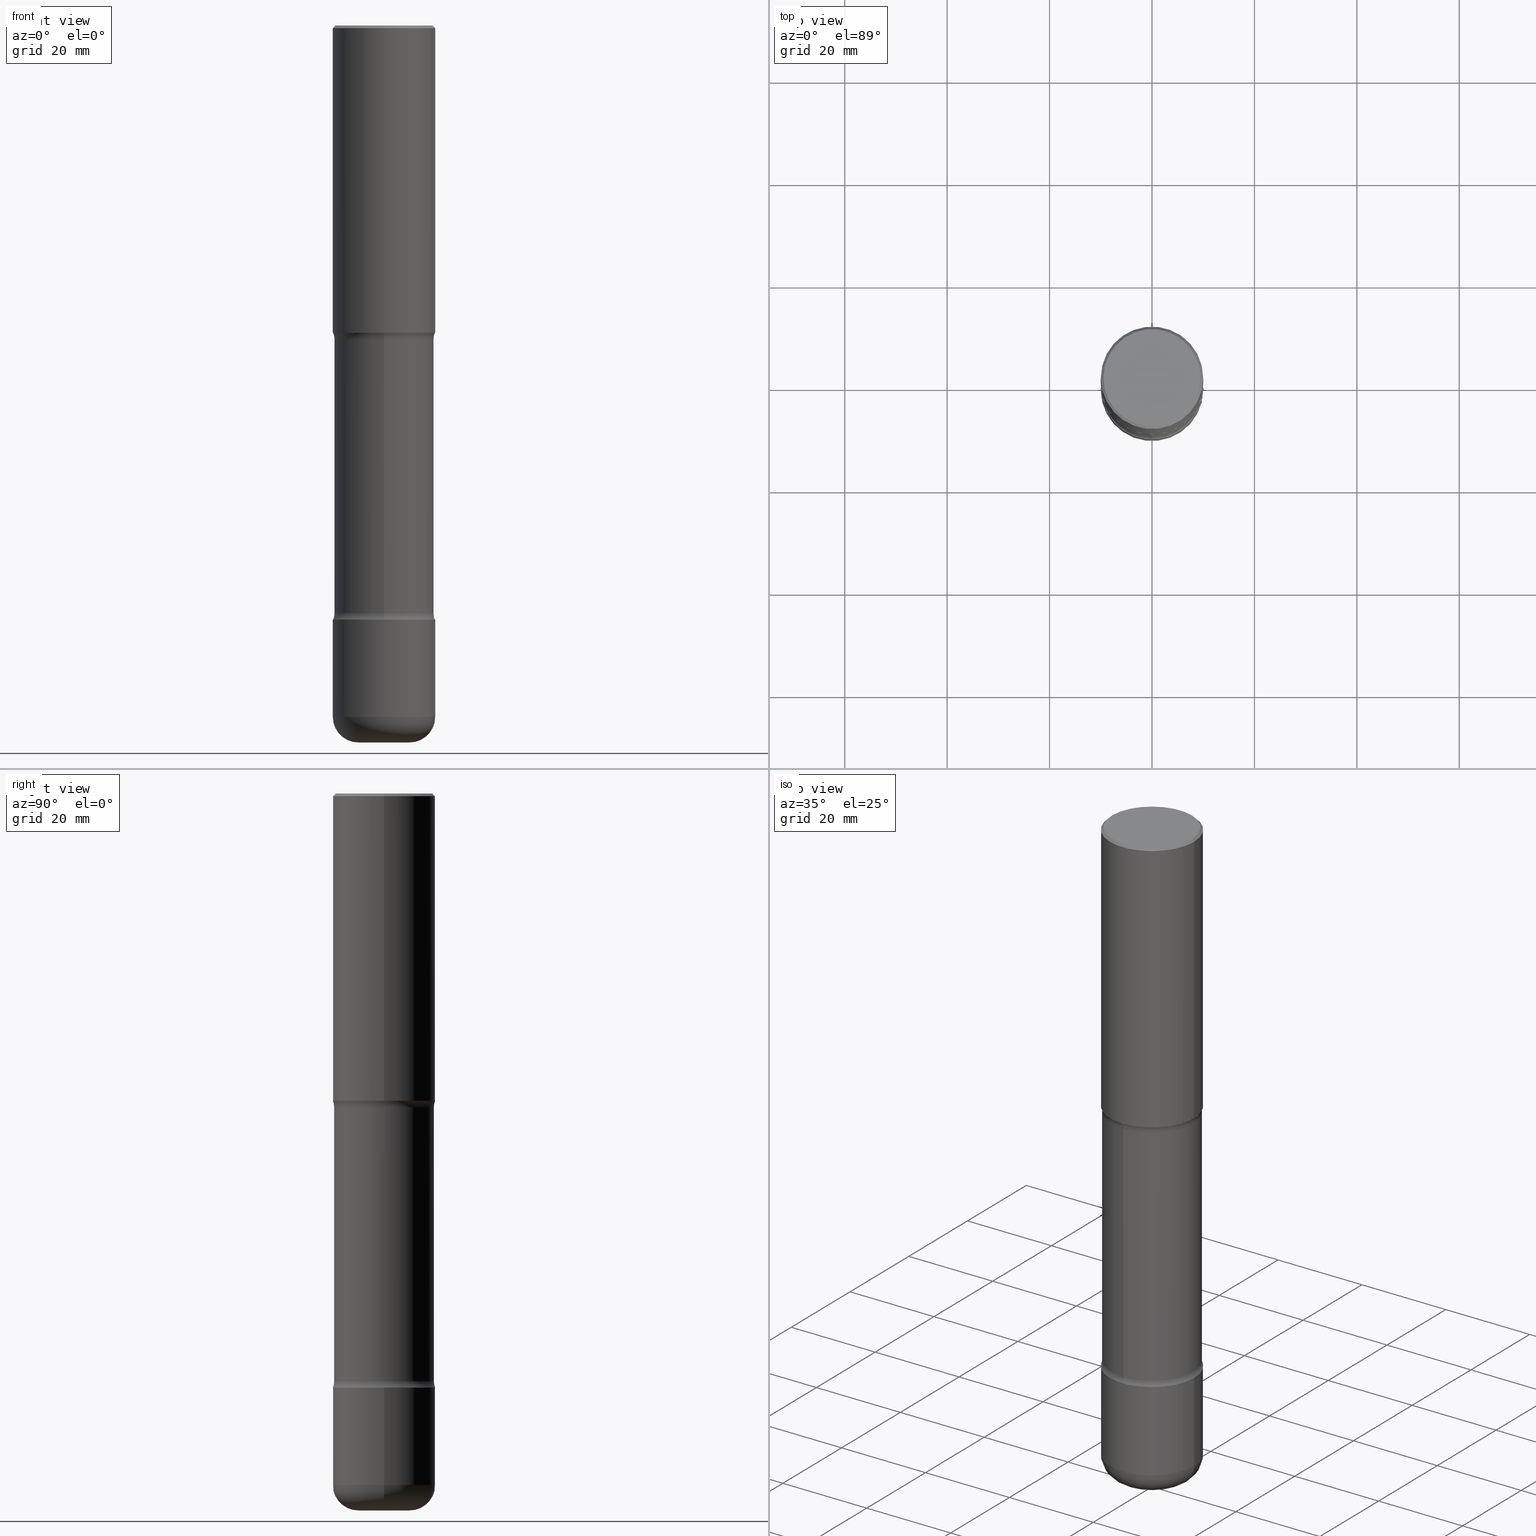
[diagram: canonical four-view strip — front | top / right | iso, engineering-drawing reading convention]
A machine part, canonical four-view strip (front | top / right | iso — engineering-drawing reading convention). The complete STEP part file that produces these views, byte-faithful:
ISO-10303-21;
HEADER;
FILE_DESCRIPTION (( 'STEP AP203' ),
    '1' );
FILE_NAME ('46841.STEP',
    '2024-03-02T05:52:01',
    ( '' ),
    ( '' ),
    'SwSTEP 2.0',
    'SolidWorks 2023',
    '' );
FILE_SCHEMA (( 'CONFIG_CONTROL_DESIGN' ));
ENDSEC;

DATA;
#1 = DIRECTION ( 'NONE',  ( 1.000000000000000000, -6.982962677686264344E-15, 4.883557194083112340E-29 ) ) ;
#2 = CIRCLE ( 'NONE', #371, 0.3736999999999999766 ) ;
#3 = AXIS2_PLACEMENT_3D ( 'NONE', #47, #395, #1 ) ;
#4 = AXIS2_PLACEMENT_3D ( 'NONE', #414, #497, #33 ) ;
#5 = CC_DESIGN_PERSON_AND_ORGANIZATION_ASSIGNMENT ( #233, #524, ( #509 ) ) ;
#6 = PERSON_AND_ORGANIZATION_ROLE ( 'design_owner' ) ;
#7 = ADVANCED_FACE ( 'NONE', ( #171 ), #464, .F. ) ;
#8 = ORIENTED_EDGE ( 'NONE', *, *, #30, .F. ) ;
#9 = PERSON_AND_ORGANIZATION ( #134, #129 ) ;
#10 = PLANE ( 'NONE',  #212 ) ;
#11 = DIRECTION ( 'NONE',  ( -2.445468806185136597E-29, 3.491481338843145583E-15, 1.000000000000000000 ) ) ;
#12 = CARTESIAN_POINT ( 'NONE',  ( -2.087702828670439639E-46, 2.980686340760894400E-32, 8.537024980200822558E-18 ) ) ;
#13 = ORIENTED_EDGE ( 'NONE', *, *, #174, .T. ) ;
#14 = CARTESIAN_POINT ( 'NONE',  ( 0.1968000000000005578, -1.993112122278608958E-14, -5.314899999999998847 ) ) ;
#15 = ORIENTED_EDGE ( 'NONE', *, *, #55, .T. ) ;
#16 = PERSON_AND_ORGANIZATION_ROLE ( 'design_supplier' ) ;
#17 = AXIS2_PLACEMENT_3D ( 'NONE', #89, #44, #476 ) ;
#18 = FACE_OUTER_BOUND ( 'NONE', #51, .T. ) ;
#19 = ORIENTED_EDGE ( 'NONE', *, *, #215, .F. ) ;
#20 = DIRECTION ( 'NONE',  ( 2.551873980375737716E-29, -3.339103073195795043E-15, -1.000000000000000000 ) ) ;
#21 = PERSON_AND_ORGANIZATION_ROLE ( 'creator' ) ;
#22 = DIRECTION ( 'NONE',  ( 1.000000000000000000, -6.982962677686264344E-15, 4.883557194083112340E-29 ) ) ;
#23 = DIRECTION ( 'NONE',  ( -1.000000000000000000, 6.982962677686265922E-15, -4.876176775795935793E-29 ) ) ;
#24 = DIRECTION ( 'NONE',  ( -2.445468806185136597E-29, 3.491481338843145583E-15, 1.000000000000000000 ) ) ;
#25 = ORIENTED_EDGE ( 'NONE', *, *, #426, .F. ) ;
#26 = DIRECTION ( 'NONE',  ( 6.982962677686265922E-15, 1.000000000000000000, -3.469453890861389657E-15 ) ) ;
#27 = AXIS2_PLACEMENT_3D ( 'NONE', #444, #267, #149 ) ;
#28 = AXIS2_PLACEMENT_3D ( 'NONE', #520, #473, #560 ) ;
#29 = ORIENTED_EDGE ( 'NONE', *, *, #183, .T. ) ;
#30 = EDGE_CURVE ( 'NONE', #297, #499, #112, .T. ) ;
#31 = ORIENTED_EDGE ( 'NONE', *, *, #433, .T. ) ;
#32 = CALENDAR_DATE ( 2024, 2, 3 ) ;
#33 = DIRECTION ( 'NONE',  ( 6.982962677686265922E-15, 1.000000000000000000, -2.849385130288670661E-15 ) ) ;
#34 = ORIENTED_EDGE ( 'NONE', *, *, #244, .T. ) ;
#35 = DIRECTION ( 'NONE',  ( -2.445468806185136597E-29, 3.491481338843145583E-15, 1.000000000000000000 ) ) ;
#36 = DIRECTION ( 'NONE',  ( 2.438088387897960049E-29, -3.491481338843145188E-15, -1.000000000000000000 ) ) ;
#37 = TOROIDAL_SURFACE ( 'NONE', #335, 0.5085000000000001741, 0.1249999999999999584 ) ;
#38 = ORIENTED_EDGE ( 'NONE', *, *, #541, .T. ) ;
#39 = CIRCLE ( 'NONE', #506, 0.1249999999999999584 ) ;
#40 = EDGE_CURVE ( 'NONE', #193, #63, #2, .T. ) ;
#41 = CARTESIAN_POINT ( 'NONE',  ( 5.659176195875929184E-29, -8.761735180288824400E-15, -2.411656647682593135 ) ) ;
#42 = DIRECTION ( 'NONE',  ( -2.445468806185136597E-29, 3.491481338843145583E-15, 1.000000000000000000 ) ) ;
#43 = CARTESIAN_POINT ( 'NONE',  ( -2.631000982145247058E-15, -0.3835000000000192699, -5.511799999999999145 ) ) ;
#44 = DIRECTION ( 'NONE',  ( 2.551873980375737716E-29, -3.339103073195795043E-15, -1.000000000000000000 ) ) ;
#45 = EDGE_CURVE ( 'NONE', #63, #342, #492, .T. ) ;
#46 = DIRECTION ( 'NONE',  ( 2.551873980375737716E-29, -3.339103073195795043E-15, -1.000000000000000000 ) ) ;
#47 = CARTESIAN_POINT ( 'NONE',  ( 1.299742215799337779E-28, -1.855687416781742833E-14, -5.314899999999998847 ) ) ;
#48 = CARTESIAN_POINT ( 'NONE',  ( 1.116821149096690103E-28, -1.594524612636276117E-14, -4.566900000000000404 ) ) ;
#49 = MECHANICAL_CONTEXT ( 'NONE', #256, 'mechanical' ) ;
#50 = MANIFOLD_SOLID_BREP ( 'Body-Move/Copy2[2]', #249 ) ;
#51 = EDGE_LOOP ( 'NONE', ( #508, #29, #416, #247 ) ) ;
#52 = CARTESIAN_POINT ( 'NONE',  ( 1.357947721502393649E-28, -1.910036462022546845E-14, -5.511800000000000033 ) ) ;
#53 = AXIS2_PLACEMENT_3D ( 'NONE', #350, #467, #522 ) ;
#54 = TOROIDAL_SURFACE ( 'NONE', #516, 0.5085000000000003961, 0.1250000000000001110 ) ;
#55 = EDGE_CURVE ( 'NONE', #381, #342, #262, .T. ) ;
#56 = LENGTH_MEASURE_WITH_UNIT ( LENGTH_MEASURE( 0.02539999999999999897 ), #189 );
#57 = APPROVAL_ROLE ( '' ) ;
#58 = MANIFOLD_SOLID_BREP ( 'Body-Move/Copy2[1]', #166 ) ;
#59 = ORIENTED_EDGE ( 'NONE', *, *, #295, .T. ) ;
#60 = CYLINDRICAL_SURFACE ( 'NONE', #186, 0.3937000000000001054 ) ;
#61 = APPROVAL_DATE_TIME ( #280, #124 ) ;
#62 = CARTESIAN_POINT ( 'NONE',  ( -0.3736999999999999766, 2.644447966039789058E-15, 8.537024980182450727E-18 ) ) ;
#63 = VERTEX_POINT ( 'NONE', #62 ) ;
#64 = FACE_OUTER_BOUND ( 'NONE', #540, .T. ) ;
#65 = CIRCLE ( 'NONE', #557, 0.3937000000000000499 ) ;
#66 = COORDINATED_UNIVERSAL_TIME_OFFSET ( 5, 0, .BEHIND. ) ;
#67 = CARTESIAN_POINT ( 'NONE',  ( 5.776686413970530874E-29, -8.247577218615279626E-15, -2.362200000000000077 ) ) ;
#68 = DIRECTION ( 'NONE',  ( 6.982962677686265133E-15, 1.000000000000000000, -3.339103073195795043E-15 ) ) ;
#69 = ADVANCED_FACE ( 'NONE', ( #153 ), #357, .T. ) ;
#70 = ORIENTED_EDGE ( 'NONE', *, *, #139, .T. ) ;
#71 = CARTESIAN_POINT ( 'NONE',  ( -2.700978061722601160E-15, -0.3937000000000093203, -2.362199999999998745 ) ) ;
#72 = ADVANCED_FACE ( 'NONE', ( #18 ), #164, .T. ) ;
#73 = SHAPE_DEFINITION_REPRESENTATION ( #451, #161 ) ;
#74 = ORIENTED_EDGE ( 'NONE', *, *, #226, .T. ) ;
#75 = LOCAL_TIME ( 0, 52, 1.000000000000000000, #313 ) ;
#76 = APPROVAL_DATE_TIME ( #334, #284 ) ;
#77 = VECTOR ( 'NONE', #437, 39.37007874015748143 ) ;
#78 = ORIENTED_EDGE ( 'NONE', *, *, #552, .F. ) ;
#79 = EDGE_CURVE ( 'NONE', #462, #110, #468, .T. ) ;
#80 = ORIENTED_EDGE ( 'NONE', *, *, #226, .F. ) ;
#81 = DIRECTION ( 'NONE',  ( 6.982962677686265133E-15, 1.000000000000000000, -3.561731412860835763E-15 ) ) ;
#82 = EDGE_LOOP ( 'NONE', ( #144, #515, #425, #169 ) ) ;
#83 = LINE ( 'NONE', #251, #352 ) ;
#84 = AXIS2_PLACEMENT_3D ( 'NONE', #109, #283, #403 ) ;
#85 = CIRCLE ( 'NONE', #196, 0.3937000000000004385 ) ;
#86 = DIRECTION ( 'NONE',  ( -2.445468806185136877E-29, 3.491481338843145188E-15, 1.000000000000000000 ) ) ;
#87 = EDGE_LOOP ( 'NONE', ( #457, #301 ) ) ;
#88 = ADVANCED_FACE ( 'NONE', ( #538 ), #421, .T. ) ;
#89 = CARTESIAN_POINT ( 'NONE',  ( 5.668302058810330557E-29, -8.748666425154899227E-15, -2.411656647682593135 ) ) ;
#90 = EDGE_LOOP ( 'NONE', ( #207, #495, #38, #474 ) ) ;
#91 = DIRECTION ( 'NONE',  ( 6.860497997771532351E-15, 1.000000000000000000, 0.000000000000000000 ) ) ;
#92 = CIRCLE ( 'NONE', #272, 0.1968000000000005856 ) ;
#93 = AXIS2_PLACEMENT_3D ( 'NONE', #261, #46, #386 ) ;
#94 = VECTOR ( 'NONE', #450, 39.37007874015748143 ) ;
#95 = FACE_OUTER_BOUND ( 'NONE', #107, .T. ) ;
#96 = PERSON_AND_ORGANIZATION ( #134, #129 ) ;
#97 = EDGE_CURVE ( 'NONE', #518, #376, #39, .T. ) ;
#98 = CARTESIAN_POINT ( 'NONE',  ( 3.550836521603578467E-15, 0.5084999999999844089, -4.517443352317410010 ) ) ;
#99 = CALENDAR_DATE ( 2024, 2, 3 ) ;
#100 = CIRCLE ( 'NONE', #452, 0.3835000000000002851 ) ;
#101 = LINE ( 'NONE', #489, #343 ) ;
#102 = DIRECTION ( 'NONE',  ( -1.000000000000000000, 6.982962677686265922E-15, 0.000000000000000000 ) ) ;
#103 = CARTESIAN_POINT ( 'NONE',  ( -0.3937000000000001054, 2.797406750687515181E-15, -1.936584745033357016E-29 ) ) ;
#104 = PERSON_AND_ORGANIZATION ( #134, #129 ) ;
#105 = EDGE_CURVE ( 'NONE', #342, #381, #65, .T. ) ;
#106 = DIRECTION ( 'NONE',  ( 2.551873980375737716E-29, -3.339103073195795043E-15, -1.000000000000000000 ) ) ;
#107 = EDGE_LOOP ( 'NONE', ( #25, #277, #312, #59 ) ) ;
#108 = DIRECTION ( 'NONE',  ( 1.000000000000000000, -6.982962677686266711E-15, 0.000000000000000000 ) ) ;
#109 = CARTESIAN_POINT ( 'NONE',  ( 3.550836521603526008E-15, 0.5084999999999916254, -2.411656647682594468 ) ) ;
#110 = VERTEX_POINT ( 'NONE', #136 ) ;
#111 = DIRECTION ( 'NONE',  ( 1.000000000000000000, -6.982962677686266711E-15, 4.876176775795935793E-29 ) ) ;
#112 = CIRCLE ( 'NONE', #156, 0.3937000000000004385 ) ;
#113 = CIRCLE ( 'NONE', #93, 0.3937000000000007160 ) ;
#114 = AXIS2_PLACEMENT_3D ( 'NONE', #545, #367, #360 ) ;
#115 = DIRECTION ( 'NONE',  ( -2.445468806185136597E-29, 3.491481338843145583E-15, 1.000000000000000000 ) ) ;
#116 = EDGE_LOOP ( 'NONE', ( #19, #365, #13, #554 ) ) ;
#117 = DIRECTION ( 'NONE',  ( -2.445468806185136597E-29, 3.491481338843145583E-15, 1.000000000000000000 ) ) ;
#118 = EDGE_CURVE ( 'NONE', #518, #240, #85, .T. ) ;
#119 = DIRECTION ( 'NONE',  ( -2.445468806185136597E-29, 3.491481338843145583E-15, 1.000000000000000000 ) ) ;
#120 = VERTEX_POINT ( 'NONE', #422 ) ;
#121 = ORIENTED_EDGE ( 'NONE', *, *, #278, .T. ) ;
#122 = VECTOR ( 'NONE', #534, 39.37007874015748143 ) ;
#123 = EDGE_LOOP ( 'NONE', ( #31, #269 ) ) ;
#124 = APPROVAL ( #486, 'UNSPECIFIED' ) ;
#125 = CARTESIAN_POINT ( 'NONE',  ( 1.116821149096690103E-28, -1.594524612636276117E-14, -4.566900000000000404 ) ) ;
#126 = EDGE_LOOP ( 'NONE', ( #201, #331, #8, #441 ) ) ;
#127 = DIRECTION ( 'NONE',  ( 2.438088387897960049E-29, -3.491481338843145188E-15, -1.000000000000000000 ) ) ;
#128 = DIRECTION ( 'NONE',  ( 7.105427357601001859E-15, 1.000000000000000000, -3.491481338843145583E-15 ) ) ;
#129 = ORGANIZATION ( 'UNSPECIFIED', 'UNSPECIFIED', '' ) ;
#130 = AXIS2_PLACEMENT_3D ( 'NONE', #389, #512, #321 ) ;
#131 = ADVANCED_FACE ( 'NONE', ( #475 ), #10, .F. ) ;
#132 = ADVANCED_FACE ( 'NONE', ( #187 ), #281, .T. ) ;
#133 = FACE_OUTER_BOUND ( 'NONE', #126, .T. ) ;
#134 = PERSON ( 'UNSPECIFIED', 'UNSPECIFIED', 'UNSPECIFIED', ('UNSPECIFIED'), ('UNSPECIFIED'), ('UNSPECIFIED') ) ;
#135 = CARTESIAN_POINT ( 'NONE',  ( 0.3937000000000000499, -2.770807688499515734E-15, -0.02000000000000008715 ) ) ;
#136 = CARTESIAN_POINT ( 'NONE',  ( -0.3937000000000002720, -1.361296672008554112E-15, -2.362200000000000077 ) ) ;
#137 = DIRECTION ( 'NONE',  ( 2.551873980375737716E-29, -3.339103073195795043E-15, -1.000000000000000000 ) ) ;
#138 = AXIS2_PLACEMENT_3D ( 'NONE', #502, #36, #23 ) ;
#139 = EDGE_CURVE ( 'NONE', #258, #402, #397, .T. ) ;
#140 =( NAMED_UNIT ( * ) PLANE_ANGLE_UNIT ( ) SI_UNIT ( $, .RADIAN. ) );
#141 = ORIENTED_EDGE ( 'NONE', *, *, #40, .F. ) ;
#142 = DIRECTION ( 'NONE',  ( -6.982962677686265922E-15, -1.000000000000000000, 3.339103073195795043E-15 ) ) ;
#143 = DATE_AND_TIME ( #526, #165 ) ;
#144 = ORIENTED_EDGE ( 'NONE', *, *, #481, .F. ) ;
#145 = CC_DESIGN_PERSON_AND_ORGANIZATION_ASSIGNMENT ( #409, #21, ( #248 ) ) ;
#146 = LOCAL_TIME ( 0, 52, 1.000000000000000000, #364 ) ;
#147 = AXIS2_PLACEMENT_3D ( 'NONE', #14, #282, #532 ) ;
#148 = EDGE_CURVE ( 'NONE', #240, #518, #232, .T. ) ;
#149 = DIRECTION ( 'NONE',  ( 1.000000000000000000, 0.000000000000000000, 0.000000000000000000 ) ) ;
#150 = CARTESIAN_POINT ( 'NONE',  ( 1.104200435858908498E-28, -1.578010528209585513E-14, -4.517443352317408234 ) ) ;
#151 = DIRECTION ( 'NONE',  ( 1.000000000000000000, -6.982962677686266711E-15, 4.876212485538975679E-29 ) ) ;
#152 = DIRECTION ( 'NONE',  ( -2.445468806185136597E-29, 3.491481338843145583E-15, 1.000000000000000000 ) ) ;
#153 = FACE_OUTER_BOUND ( 'NONE', #338, .T. ) ;
#154 = ORIENTED_EDGE ( 'NONE', *, *, #278, .F. ) ;
#155 = LINE ( 'NONE', #195, #94 ) ;
#156 = AXIS2_PLACEMENT_3D ( 'NONE', #48, #463, #292 ) ;
#157 = AXIS2_PLACEMENT_3D ( 'NONE', #490, #117, #108 ) ;
#158 = ORIENTED_EDGE ( 'NONE', *, *, #148, .F. ) ;
#159 = ADVANCED_FACE ( 'NONE', ( #264 ), #420, .F. ) ;
#160 = ORIENTED_EDGE ( 'NONE', *, *, #384, .T. ) ;
#161 = ADVANCED_BREP_SHAPE_REPRESENTATION ( '46841', ( #58, #50, #431, #27 ), #372 ) ;
#162 = DATE_AND_TIME ( #377, #146 ) ;
#163 = ORIENTED_EDGE ( 'NONE', *, *, #426, .T. ) ;
#164 = TOROIDAL_SURFACE ( 'NONE', #546, 0.1968000000000005578, 0.1969000000000001860 ) ;
#165 = LOCAL_TIME ( 0, 52, 1.000000000000000000, #66 ) ;
#166 = CLOSED_SHELL ( 'NONE', ( #496, #513, #69, #72, #132, #347 ) ) ;
#167 = CIRCLE ( 'NONE', #17, 0.3835000000000002851 ) ;
#168 = FACE_OUTER_BOUND ( 'NONE', #369, .T. ) ;
#169 = ORIENTED_EDGE ( 'NONE', *, *, #105, .T. ) ;
#170 = LINE ( 'NONE', #229, #122 ) ;
#171 = FACE_OUTER_BOUND ( 'NONE', #411, .T. ) ;
#172 = DIRECTION ( 'NONE',  ( -1.000000000000000000, 7.105427357601005014E-15, 0.000000000000000000 ) ) ;
#173 = ORIENTED_EDGE ( 'NONE', *, *, #183, .F. ) ;
#174 = EDGE_CURVE ( 'NONE', #273, #120, #328, .T. ) ;
#175 = ADVANCED_FACE ( 'NONE', ( #354 ), #373, .T. ) ;
#176 = CYLINDRICAL_SURFACE ( 'NONE', #194, 0.3937000000000004940 ) ;
#177 = LOCAL_TIME ( 0, 52, 1.000000000000000000, #405 ) ;
#178 = VERTEX_POINT ( 'NONE', #234 ) ;
#179 = DIRECTION ( 'NONE',  ( 6.982962677686265133E-15, 1.000000000000000000, -3.339103073195795043E-15 ) ) ;
#180 = FACE_OUTER_BOUND ( 'NONE', #116, .T. ) ;
#181 = DIMENSIONAL_EXPONENTS ( 1.000000000000000000, 0.000000000000000000, 0.000000000000000000, 0.000000000000000000, 0.000000000000000000, 0.000000000000000000, 0.000000000000000000 ) ;
#182 = PRODUCT_RELATED_PRODUCT_CATEGORY ( 'detail', '', ( #542 ) ) ;
#183 = EDGE_CURVE ( 'NONE', #418, #178, #442, .T. ) ;
#184 = CARTESIAN_POINT ( 'NONE',  ( 0.3937000000000002164, -1.099676962482036442E-14, -2.362200000000000077 ) ) ;
#185 = CC_DESIGN_APPROVAL ( #284, ( #419 ) ) ;
#186 = AXIS2_PLACEMENT_3D ( 'NONE', #287, #363, #111 ) ;
#187 = FACE_OUTER_BOUND ( 'NONE', #316, .T. ) ;
#188 = CARTESIAN_POINT ( 'NONE',  ( 0.000000000000000000, 0.000000000000000000, 0.000000000000000000 ) ) ;
#189 =( LENGTH_UNIT ( ) NAMED_UNIT ( * ) SI_UNIT ( $, .METRE. ) );
#190 = DIRECTION ( 'NONE',  ( 6.982962677686265922E-15, 1.000000000000000000, -2.775563112689113540E-15 ) ) ;
#191 = ADVANCED_FACE ( 'NONE', ( #341 ), #519, .F. ) ;
#192 =( CONVERSION_BASED_UNIT ( 'INCH', #56 ) LENGTH_UNIT ( ) NAMED_UNIT ( #181 ) );
#193 = VERTEX_POINT ( 'NONE', #302 ) ;
#194 = AXIS2_PLACEMENT_3D ( 'NONE', #257, #558, #220 ) ;
#195 = CARTESIAN_POINT ( 'NONE',  ( 0.3937000000000001054, -2.749192406205084005E-15, 1.919750796630860452E-29 ) ) ;
#196 = AXIS2_PLACEMENT_3D ( 'NONE', #348, #330, #543 ) ;
#197 = APPLICATION_PROTOCOL_DEFINITION ( 'international standard', 'config_control_design', 1994, #256 ) ;
#198 = EDGE_LOOP ( 'NONE', ( #141, #466, #15, #294 ) ) ;
#199 = DIRECTION ( 'NONE',  ( -2.445468806185136877E-29, 3.491481338843145188E-15, 1.000000000000000000 ) ) ;
#200 = DIRECTION ( 'NONE',  ( -1.000000000000000000, 6.982962677686265922E-15, 0.000000000000000000 ) ) ;
#201 = ORIENTED_EDGE ( 'NONE', *, *, #332, .T. ) ;
#202 = ADVANCED_FACE ( 'NONE', ( #210 ), #291, .F. ) ;
#203 = DIRECTION ( 'NONE',  ( 1.000000000000000000, -6.982962677686266711E-15, 0.000000000000000000 ) ) ;
#204 = ORIENTED_EDGE ( 'NONE', *, *, #332, .F. ) ;
#205 = APPROVAL_PERSON_ORGANIZATION ( #242, #284, #289 ) ;
#206 = CIRCLE ( 'NONE', #147, 0.1969000000000002137 ) ;
#207 = ORIENTED_EDGE ( 'NONE', *, *, #399, .F. ) ;
#208 = VERTEX_POINT ( 'NONE', #447 ) ;
#209 = CARTESIAN_POINT ( 'NONE',  ( 1.347893496593123422E-28, -1.924434684343564562E-14, -5.511799999999999145 ) ) ;
#210 = FACE_OUTER_BOUND ( 'NONE', #87, .T. ) ;
#211 = ORIENTED_EDGE ( 'NONE', *, *, #305, .T. ) ;
#212 = AXIS2_PLACEMENT_3D ( 'NONE', #483, #223, #142 ) ;
#213 = DIRECTION ( 'NONE',  ( 2.445468806185136597E-29, -3.491481338843145583E-15, -1.000000000000000000 ) ) ;
#214 = DIRECTION ( 'NONE',  ( 1.000000000000000000, -6.982962677686265922E-15, 0.000000000000000000 ) ) ;
#215 = EDGE_CURVE ( 'NONE', #258, #208, #100, .T. ) ;
#216 = CARTESIAN_POINT ( 'NONE',  ( 1.104726680180063437E-28, -1.577256916389725369E-14, -4.517443352317409122 ) ) ;
#217 = CARTESIAN_POINT ( 'NONE',  ( -2.665989521933906951E-15, -0.3835000000000157727, -4.517443352317407346 ) ) ;
#218 = DIRECTION ( 'NONE',  ( 2.445468806185136597E-29, -3.491481338843145583E-15, -1.000000000000000000 ) ) ;
#219 = DIRECTION ( 'NONE',  ( -1.000000000000000000, 6.982962677686265922E-15, -4.876176775795935793E-29 ) ) ;
#220 = DIRECTION ( 'NONE',  ( 1.000000000000000000, -6.982962677686266711E-15, 4.876176775795935793E-29 ) ) ;
#221 = CYLINDRICAL_SURFACE ( 'NONE', #412, 0.3937000000000001054 ) ;
#222 = CC_DESIGN_APPROVAL ( #124, ( #248 ) ) ;
#223 = DIRECTION ( 'NONE',  ( -2.551873980375737156E-29, 3.339103073195795043E-15, 1.000000000000000000 ) ) ;
#224 = CC_DESIGN_DATE_AND_TIME_ASSIGNMENT ( #143, #228, ( #509 ) ) ;
#225 = DIRECTION ( 'NONE',  ( 1.000000000000000000, -6.982962677686270655E-15, 0.000000000000000000 ) ) ;
#226 = EDGE_CURVE ( 'NONE', #110, #342, #236, .T. ) ;
#227 = DIRECTION ( 'NONE',  ( -0.7071067811865469066, 2.468850131082250355E-15, -0.7071067811865481278 ) ) ;
#228 = DATE_TIME_ROLE ( 'creation_date' ) ;
#229 = CARTESIAN_POINT ( 'NONE',  ( 2.677966186892819583E-15, 0.3834999999999810227, -5.511800000000000921 ) ) ;
#230 = ORIENTED_EDGE ( 'NONE', *, *, #97, .F. ) ;
#231 = CYLINDRICAL_SURFACE ( 'NONE', #530, 0.3835000000000001741 ) ;
#232 = CIRCLE ( 'NONE', #430, 0.3937000000000004385 ) ;
#233 = PERSON_AND_ORGANIZATION ( #134, #129 ) ;
#234 = CARTESIAN_POINT ( 'NONE',  ( 0.1968000000000005856, -2.061859389840430688E-14, -5.511799999999999145 ) ) ;
#235 = DIRECTION ( 'NONE',  ( 1.000000000000000000, -6.982962677686261189E-15, 0.000000000000000000 ) ) ;
#236 = LINE ( 'NONE', #103, #344 ) ;
#237 = ADVANCED_FACE ( 'NONE', ( #536 ), #523, .T. ) ;
#238 = ORIENTED_EDGE ( 'NONE', *, *, #55, .F. ) ;
#239 = PERSON_AND_ORGANIZATION_ROLE ( 'classification_officer' ) ;
#240 = VERTEX_POINT ( 'NONE', #385 ) ;
#241 = UNCERTAINTY_MEASURE_WITH_UNIT (LENGTH_MEASURE( 1.000000000000000082E-05 ), #192, 'distance_accuracy_value', 'NONE');
#242 = PERSON_AND_ORGANIZATION ( #134, #129 ) ;
#243 = ORIENTED_EDGE ( 'NONE', *, *, #286, .T. ) ;
#244 = EDGE_CURVE ( 'NONE', #462, #381, #155, .T. ) ;
#245 = DIRECTION ( 'NONE',  ( 6.982962677686265922E-15, 1.000000000000000000, -2.849385130288670661E-15 ) ) ;
#246 = VERTEX_POINT ( 'NONE', #424 ) ;
#247 = ORIENTED_EDGE ( 'NONE', *, *, #370, .F. ) ;
#248 = PRODUCT_DEFINITION_FORMATION_WITH_SPECIFIED_SOURCE ( 'ANY', '', #542, .NOT_KNOWN. ) ;
#249 = CLOSED_SHELL ( 'NONE', ( #271, #237, #175, #191, #7, #374 ) ) ;
#250 = AXIS2_PLACEMENT_3D ( 'NONE', #150, #322, #245 ) ;
#251 = CARTESIAN_POINT ( 'NONE',  ( -0.3937000000000004940, 2.797406750687517942E-15, -1.936584745033358697E-29 ) ) ;
#252 = CARTESIAN_POINT ( 'NONE',  ( 5.776686413970530874E-29, -8.247577218615279626E-15, -2.362200000000000077 ) ) ;
#253 = EDGE_CURVE ( 'NONE', #178, #535, #206, .T. ) ;
#254 = LINE ( 'NONE', #434, #310 ) ;
#255 = ORIENTED_EDGE ( 'NONE', *, *, #118, .T. ) ;
#256 = APPLICATION_CONTEXT ( 'configuration controlled 3d designs of mechanical parts and assemblies' ) ;
#257 = CARTESIAN_POINT ( 'NONE',  ( 0.000000000000000000, 0.000000000000000000, 0.000000000000000000 ) ) ;
#258 = VERTEX_POINT ( 'NONE', #279 ) ;
#259 = CC_DESIGN_DATE_AND_TIME_ASSIGNMENT ( #162, #296, ( #419 ) ) ;
#260 = TOROIDAL_SURFACE ( 'NONE', #3, 0.1968000000000005578, 0.1969000000000001860 ) ;
#261 = CARTESIAN_POINT ( 'NONE',  ( 5.542094926432512266E-29, -8.583525580887993185E-15, -2.362200000000000077 ) ) ;
#262 = CIRCLE ( 'NONE', #325, 0.3937000000000000499 ) ;
#263 = CIRCLE ( 'NONE', #359, 0.1969000000000002137 ) ;
#264 = FACE_OUTER_BOUND ( 'NONE', #455, .T. ) ;
#265 = CARTESIAN_POINT ( 'NONE',  ( 2.749192406205196813E-15, 0.3936999999999843958, -4.566900000000001292 ) ) ;
#266 = CARTESIAN_POINT ( 'NONE',  ( 1.116821149096690103E-28, -1.594524612636276117E-14, -4.566900000000000404 ) ) ;
#267 = DIRECTION ( 'NONE',  ( 0.000000000000000000, 0.000000000000000000, 1.000000000000000000 ) ) ;
#268 = DIRECTION ( 'NONE',  ( 1.000000000000000000, -6.982962677686266711E-15, 4.876176775795935793E-29 ) ) ;
#269 = ORIENTED_EDGE ( 'NONE', *, *, #40, .T. ) ;
#270 = DIRECTION ( 'NONE',  ( -2.445468806185136877E-29, 3.491481338843145188E-15, 1.000000000000000000 ) ) ;
#271 = ADVANCED_FACE ( 'NONE', ( #549 ), #60, .T. ) ;
#272 = AXIS2_PLACEMENT_3D ( 'NONE', #550, #388, #308 ) ;
#273 = VERTEX_POINT ( 'NONE', #71 ) ;
#274 = CIRCLE ( 'NONE', #28, 0.3937000000000006605 ) ;
#275 = APPROVAL_DATE_TIME ( #356, #320 ) ;
#276 = DIRECTION ( 'NONE',  ( 2.438088387897960049E-29, -3.491481338843145188E-15, -1.000000000000000000 ) ) ;
#277 = ORIENTED_EDGE ( 'NONE', *, *, #118, .F. ) ;
#278 = EDGE_CURVE ( 'NONE', #208, #376, #170, .T. ) ;
#279 = CARTESIAN_POINT ( 'NONE',  ( -2.665989521933964538E-15, -0.3835000000000090559, -2.411656647682591803 ) ) ;
#280 = DATE_AND_TIME ( #482, #177 ) ;
#281 = CYLINDRICAL_SURFACE ( 'NONE', #383, 0.3937000000000004940 ) ;
#282 = DIRECTION ( 'NONE',  ( -6.982962677686266711E-15, -1.000000000000000000, 3.491481338843145583E-15 ) ) ;
#283 = DIRECTION ( 'NONE',  ( -1.000000000000000000, 6.982962677686265922E-15, -4.883557194083112340E-29 ) ) ;
#284 = APPROVAL ( #293, 'UNSPECIFIED' ) ;
#285 = ORIENTED_EDGE ( 'NONE', *, *, #552, .T. ) ;
#286 = EDGE_CURVE ( 'NONE', #110, #462, #494, .T. ) ;
#287 = CARTESIAN_POINT ( 'NONE',  ( 0.000000000000000000, 0.000000000000000000, 0.000000000000000000 ) ) ;
#288 = AXIS2_PLACEMENT_3D ( 'NONE', #366, #379, #26 ) ;
#289 = APPROVAL_ROLE ( '' ) ;
#290 = ORIENTED_EDGE ( 'NONE', *, *, #79, .T. ) ;
#291 = PLANE ( 'NONE',  #114 ) ;
#292 = DIRECTION ( 'NONE',  ( 1.000000000000000000, -6.982962677686270655E-15, 0.000000000000000000 ) ) ;
#293 = APPROVAL_STATUS ( 'not_yet_approved' ) ;
#294 = ORIENTED_EDGE ( 'NONE', *, *, #45, .F. ) ;
#295 = EDGE_CURVE ( 'NONE', #376, #402, #336, .T. ) ;
#296 = DATE_TIME_ROLE ( 'classification_date' ) ;
#297 = VERTEX_POINT ( 'NONE', #319 ) ;
#298 = DIRECTION ( 'NONE',  ( 1.000000000000000000, -6.982962677686265922E-15, 4.876176775795935793E-29 ) ) ;
#299 = CIRCLE ( 'NONE', #398, 0.3937000000000004385 ) ;
#300 = AXIS2_PLACEMENT_3D ( 'NONE', #125, #127, #219 ) ;
#301 = ORIENTED_EDGE ( 'NONE', *, *, #174, .F. ) ;
#302 = CARTESIAN_POINT ( 'NONE',  ( 0.3736999999999999766, -2.667287895133368359E-15, 8.537024980219274507E-18 ) ) ;
#303 = ORIENTED_EDGE ( 'NONE', *, *, #406, .T. ) ;
#304 = DIRECTION ( 'NONE',  ( 1.000000000000000000, -6.860497997771530774E-15, 4.842664975176989819E-29 ) ) ;
#305 = EDGE_CURVE ( 'NONE', #402, #376, #401, .T. ) ;
#306 = AXIS2_PLACEMENT_3D ( 'NONE', #209, #119, #235 ) ;
#307 = DIRECTION ( 'NONE',  ( 1.000000000000000000, -6.982962677686266711E-15, 4.876176775795935793E-29 ) ) ;
#308 = DIRECTION ( 'NONE',  ( 1.000000000000000000, -6.982962677686261189E-15, 0.000000000000000000 ) ) ;
#309 = CARTESIAN_POINT ( 'NONE',  ( 0.000000000000000000, 0.000000000000000000, 0.000000000000000000 ) ) ;
#310 = VECTOR ( 'NONE', #553, 39.37007874015748143 ) ;
#311 = APPROVAL_STATUS ( 'not_yet_approved' ) ;
#312 = ORIENTED_EDGE ( 'NONE', *, *, #97, .T. ) ;
#313 = COORDINATED_UNIVERSAL_TIME_OFFSET ( 5, 0, .BEHIND. ) ;
#314 = PERSON_AND_ORGANIZATION ( #134, #129 ) ;
#315 = DIRECTION ( 'NONE',  ( -1.000000000000000000, 6.982962677686265922E-15, -4.876176775795935793E-29 ) ) ;
#316 = EDGE_LOOP ( 'NONE', ( #504, #484, #547, #78 ) ) ;
#317 = AXIS2_PLACEMENT_3D ( 'NONE', #52, #106, #394 ) ;
#318 = DIRECTION ( 'NONE',  ( 1.000000000000000000, -6.982962677686265922E-15, 0.000000000000000000 ) ) ;
#319 = CARTESIAN_POINT ( 'NONE',  ( 0.3937000000000004385, -1.869443853256785070E-14, -4.566900000000000404 ) ) ;
#320 = APPROVAL ( #311, 'UNSPECIFIED' ) ;
#321 = DIRECTION ( 'NONE',  ( 6.982962677686265133E-15, 1.000000000000000000, -3.339103073195795043E-15 ) ) ;
#322 = DIRECTION ( 'NONE',  ( 2.551873980375737716E-29, -3.339103073195795043E-15, -1.000000000000000000 ) ) ;
#323 = CARTESIAN_POINT ( 'NONE',  ( 3.484992289829650492E-28, 1.136012423680551379E-14, -5.511800000000000033 ) ) ;
#324 = ORIENTED_EDGE ( 'NONE', *, *, #139, .F. ) ;
#325 = AXIS2_PLACEMENT_3D ( 'NONE', #404, #448, #318 ) ;
#326 = AXIS2_PLACEMENT_3D ( 'NONE', #436, #304, #91 ) ;
#327 = DIRECTION ( 'NONE',  ( 1.000000000000000000, -6.982962677686266711E-15, 0.000000000000000000 ) ) ;
#328 = CIRCLE ( 'NONE', #288, 0.3937000000000007160 ) ;
#329 = SECURITY_CLASSIFICATION_LEVEL ( 'unclassified' ) ;
#330 = DIRECTION ( 'NONE',  ( 2.551873980375737716E-29, -3.339103073195795043E-15, -1.000000000000000000 ) ) ;
#331 = ORIENTED_EDGE ( 'NONE', *, *, #445, .T. ) ;
#332 = EDGE_CURVE ( 'NONE', #535, #246, #460, .T. ) ;
#333 = ADVANCED_FACE ( 'NONE', ( #64 ), #231, .T. ) ;
#334 = DATE_AND_TIME ( #32, #458 ) ;
#335 = AXIS2_PLACEMENT_3D ( 'NONE', #216, #351, #517 ) ;
#336 = CIRCLE ( 'NONE', #250, 0.3835000000000000075 ) ;
#337 = DIRECTION ( 'NONE',  ( 2.551873980375737716E-29, -3.339103073195795043E-15, -1.000000000000000000 ) ) ;
#338 = EDGE_LOOP ( 'NONE', ( #472, #173 ) ) ;
#339 = DIRECTION ( 'NONE',  ( 6.982962677686265133E-15, 1.000000000000000000, -2.849385130288669478E-15 ) ) ;
#340 = ADVANCED_FACE ( 'NONE', ( #465 ), #470, .F. ) ;
#341 = FACE_OUTER_BOUND ( 'NONE', #123, .T. ) ;
#342 = VERTEX_POINT ( 'NONE', #428 ) ;
#343 = VECTOR ( 'NONE', #270, 39.37007874015748143 ) ;
#344 = VECTOR ( 'NONE', #199, 39.37007874015748143 ) ;
#345 = CARTESIAN_POINT ( 'NONE',  ( -3.488563231866769362E-15, -0.5085000000000091669, -2.411656647682591359 ) ) ;
#346 = ORIENTED_EDGE ( 'NONE', *, *, #148, .T. ) ;
#347 = ADVANCED_FACE ( 'NONE', ( #168 ), #507, .F. ) ;
#348 = CARTESIAN_POINT ( 'NONE',  ( 1.116821149096690103E-28, -1.594524612636276117E-14, -4.566900000000000404 ) ) ;
#349 = ADVANCED_FACE ( 'NONE', ( #180 ), #54, .F. ) ;
#350 = CARTESIAN_POINT ( 'NONE',  ( -2.087702828670439639E-46, 2.980686340760894400E-32, 8.537024980200822558E-18 ) ) ;
#351 = DIRECTION ( 'NONE',  ( 2.551873980375737716E-29, -3.339103073195795043E-15, -1.000000000000000000 ) ) ;
#352 = VECTOR ( 'NONE', #86, 39.37007874015748143 ) ;
#353 = AXIS2_PLACEMENT_3D ( 'NONE', #456, #213, #200 ) ;
#354 = FACE_OUTER_BOUND ( 'NONE', #82, .T. ) ;
#355 = EDGE_LOOP ( 'NONE', ( #255, #346 ) ) ;
#356 = DATE_AND_TIME ( #99, #75 ) ;
#357 = PLANE ( 'NONE',  #478 ) ;
#358 =( NAMED_UNIT ( * ) SI_UNIT ( $, .STERADIAN. ) SOLID_ANGLE_UNIT ( ) );
#359 = AXIS2_PLACEMENT_3D ( 'NONE', #432, #128, #172 ) ;
#360 = DIRECTION ( 'NONE',  ( 6.982962677686265922E-15, 1.000000000000000000, -3.339103073195795043E-15 ) ) ;
#361 = DIRECTION ( 'NONE',  ( -6.982962677686265133E-15, -1.000000000000000000, 0.000000000000000000 ) ) ;
#362 = ORIENTED_EDGE ( 'NONE', *, *, #286, .F. ) ;
#363 = DIRECTION ( 'NONE',  ( -2.445468806185136597E-29, 3.491481338843145583E-15, 1.000000000000000000 ) ) ;
#364 = COORDINATED_UNIVERSAL_TIME_OFFSET ( 5, 0, .BEHIND. ) ;
#365 = ORIENTED_EDGE ( 'NONE', *, *, #399, .T. ) ;
#366 = CARTESIAN_POINT ( 'NONE',  ( 5.542094926432512266E-29, -8.583525580887993185E-15, -2.362200000000000077 ) ) ;
#367 = DIRECTION ( 'NONE',  ( 2.551873980375737156E-29, -3.339103073195795043E-15, -1.000000000000000000 ) ) ;
#368 = COORDINATED_UNIVERSAL_TIME_OFFSET ( 5, 0, .BEHIND. ) ;
#369 = EDGE_LOOP ( 'NONE', ( #459, #285 ) ) ;
#370 = EDGE_CURVE ( 'NONE', #246, #535, #274, .T. ) ;
#371 = AXIS2_PLACEMENT_3D ( 'NONE', #12, #443, #151 ) ;
#372 =( GEOMETRIC_REPRESENTATION_CONTEXT ( 3 ) GLOBAL_UNCERTAINTY_ASSIGNED_CONTEXT ( ( #241 ) ) GLOBAL_UNIT_ASSIGNED_CONTEXT ( ( #192, #140, #358 ) ) REPRESENTATION_CONTEXT ( 'NONE', 'WORKASPACE' ) );
#373 = CONICAL_SURFACE ( 'NONE', #392, 0.3937000000000000499, 0.7853981633974473908 ) ;
#374 = ADVANCED_FACE ( 'NONE', ( #514 ), #221, .T. ) ;
#375 = CIRCLE ( 'NONE', #454, 0.1250000000000001110 ) ;
#376 = VERTEX_POINT ( 'NONE', #511 ) ;
#377 = CALENDAR_DATE ( 2024, 2, 3 ) ;
#378 = EDGE_LOOP ( 'NONE', ( #290, #74, #238, #501 ) ) ;
#379 = DIRECTION ( 'NONE',  ( 2.551873980375737716E-29, -3.339103073195795043E-15, -1.000000000000000000 ) ) ;
#380 = CARTESIAN_POINT ( 'NONE',  ( 1.357947721502393649E-28, -1.910036462022546845E-14, -5.511800000000000033 ) ) ;
#381 = VERTEX_POINT ( 'NONE', #135 ) ;
#382 = CIRCLE ( 'NONE', #326, 0.1249999999999999584 ) ;
#383 = AXIS2_PLACEMENT_3D ( 'NONE', #188, #396, #268 ) ;
#384 = EDGE_CURVE ( 'NONE', #418, #246, #263, .T. ) ;
#385 = CARTESIAN_POINT ( 'NONE',  ( -2.700978061722541995E-15, -0.3937000000000162037, -4.566899999999999515 ) ) ;
#386 = DIRECTION ( 'NONE',  ( 6.982962677686265922E-15, 1.000000000000000000, -3.469453890861389657E-15 ) ) ;
#387 = ORIENTED_EDGE ( 'NONE', *, *, #215, .T. ) ;
#388 = DIRECTION ( 'NONE',  ( -2.445468806185136597E-29, 3.491481338843145583E-15, 1.000000000000000000 ) ) ;
#389 = CARTESIAN_POINT ( 'NONE',  ( 1.104726680180063437E-28, -1.577256916389725369E-14, -4.517443352317409122 ) ) ;
#390 = EDGE_CURVE ( 'NONE', #208, #258, #167, .T. ) ;
#391 = APPROVAL_PERSON_ORGANIZATION ( #314, #124, #57 ) ;
#392 = AXIS2_PLACEMENT_3D ( 'NONE', #503, #218, #102 ) ;
#393 = CARTESIAN_POINT ( 'NONE',  ( -0.3937000000000004385, -1.445365339640257918E-14, -4.566900000000000404 ) ) ;
#394 = DIRECTION ( 'NONE',  ( 6.982962677686265133E-15, 1.000000000000000000, -2.849385130288669478E-15 ) ) ;
#395 = DIRECTION ( 'NONE',  ( -2.445468806185136597E-29, 3.491481338843145583E-15, 1.000000000000000000 ) ) ;
#396 = DIRECTION ( 'NONE',  ( -2.445468806185136597E-29, 3.491481338843145583E-15, 1.000000000000000000 ) ) ;
#397 = LINE ( 'NONE', #43, #77 ) ;
#398 = AXIS2_PLACEMENT_3D ( 'NONE', #533, #11, #225 ) ;
#399 = EDGE_CURVE ( 'NONE', #258, #273, #375, .T. ) ;
#400 = APPROVAL_ROLE ( '' ) ;
#401 = CIRCLE ( 'NONE', #4, 0.3835000000000000075 ) ;
#402 = VERTEX_POINT ( 'NONE', #217 ) ;
#403 = DIRECTION ( 'NONE',  ( -6.982962677686264344E-15, -1.000000000000000000, 0.000000000000000000 ) ) ;
#404 = CARTESIAN_POINT ( 'NONE',  ( 4.890937612370294178E-31, -6.982962677686321191E-17, -0.02000000000000008715 ) ) ;
#405 = COORDINATED_UNIVERSAL_TIME_OFFSET ( 5, 0, .BEHIND. ) ;
#406 = EDGE_CURVE ( 'NONE', #178, #418, #92, .T. ) ;
#407 = CARTESIAN_POINT ( 'NONE',  ( 5.776686413970530874E-29, -8.247577218615279626E-15, -2.362200000000000077 ) ) ;
#408 = DIRECTION ( 'NONE',  ( -1.000000000000000000, 6.982962677686265922E-15, -4.883557194083112340E-29 ) ) ;
#409 = PERSON_AND_ORGANIZATION ( #134, #129 ) ;
#410 = CIRCLE ( 'NONE', #84, 0.1250000000000001110 ) ;
#411 = EDGE_LOOP ( 'NONE', ( #423, #362 ) ) ;
#412 = AXIS2_PLACEMENT_3D ( 'NONE', #309, #42, #307 ) ;
#413 = CARTESIAN_POINT ( 'NONE',  ( 5.668302058810330557E-29, -8.748666425154899227E-15, -2.411656647682593135 ) ) ;
#414 = CARTESIAN_POINT ( 'NONE',  ( 1.104200435858908498E-28, -1.578010528209585513E-14, -4.517443352317408234 ) ) ;
#415 = CARTESIAN_POINT ( 'NONE',  ( 1.299742215799337779E-28, -1.855687416781742833E-14, -5.314899999999998847 ) ) ;
#416 = ORIENTED_EDGE ( 'NONE', *, *, #253, .T. ) ;
#417 = PERSON_AND_ORGANIZATION ( #134, #129 ) ;
#418 = VERTEX_POINT ( 'NONE', #440 ) ;
#419 = SECURITY_CLASSIFICATION ( '', '', #329 ) ;
#420 = TOROIDAL_SURFACE ( 'NONE', #130, 0.5085000000000001741, 0.1249999999999999584 ) ;
#421 = CYLINDRICAL_SURFACE ( 'NONE', #317, 0.3835000000000001741 ) ;
#422 = CARTESIAN_POINT ( 'NONE',  ( 2.749192406205143170E-15, 0.3936999999999921673, -2.362200000000001854 ) ) ;
#423 = ORIENTED_EDGE ( 'NONE', *, *, #79, .F. ) ;
#424 = CARTESIAN_POINT ( 'NONE',  ( -0.3937000000000007160, -1.575946741712991118E-14, -5.314899999999998847 ) ) ;
#425 = ORIENTED_EDGE ( 'NONE', *, *, #45, .T. ) ;
#426 = EDGE_CURVE ( 'NONE', #240, #402, #382, .T. ) ;
#427 = CARTESIAN_POINT ( 'NONE',  ( 4.890937612370294178E-31, -6.982962677686321191E-17, -0.02000000000000008715 ) ) ;
#428 = CARTESIAN_POINT ( 'NONE',  ( -0.3937000000000000499, 2.679362779428219918E-15, -0.02000000000000008715 ) ) ;
#429 = ORIENTED_EDGE ( 'NONE', *, *, #305, .F. ) ;
#430 = AXIS2_PLACEMENT_3D ( 'NONE', #266, #480, #190 ) ;
#431 = MANIFOLD_SOLID_BREP ( 'Body-Move/Copy2[4]', #477 ) ;
#432 = CARTESIAN_POINT ( 'NONE',  ( -0.1968000000000005578, -1.715852606384155055E-14, -5.314899999999998847 ) ) ;
#433 = EDGE_CURVE ( 'NONE', #63, #193, #528, .T. ) ;
#434 = CARTESIAN_POINT ( 'NONE',  ( 0.3937000000000000499, -2.770807688499515734E-15, -0.02000000000000008715 ) ) ;
#435 = ORIENTED_EDGE ( 'NONE', *, *, #295, .F. ) ;
#436 = CARTESIAN_POINT ( 'NONE',  ( -3.488563231866714142E-15, -0.5085000000000159392, -4.517443352317407346 ) ) ;
#437 = DIRECTION ( 'NONE',  ( 2.551873980375737716E-29, -3.339103073195795043E-15, -1.000000000000000000 ) ) ;
#438 = AXIS2_PLACEMENT_3D ( 'NONE', #407, #152, #327 ) ;
#439 = DIRECTION ( 'NONE',  ( 6.860497997771531562E-15, 1.000000000000000000, 0.000000000000000000 ) ) ;
#440 = CARTESIAN_POINT ( 'NONE',  ( -0.1968000000000005856, -1.680273307829483794E-14, -5.511799999999999145 ) ) ;
#441 = ORIENTED_EDGE ( 'NONE', *, *, #521, .F. ) ;
#442 = CIRCLE ( 'NONE', #306, 0.1968000000000005856 ) ;
#443 = DIRECTION ( 'NONE',  ( -2.445468806185136597E-29, 3.491481338843145583E-15, 1.000000000000000000 ) ) ;
#444 = CARTESIAN_POINT ( 'NONE',  ( 0.000000000000000000, 0.000000000000000000, 0.000000000000000000 ) ) ;
#445 = EDGE_CURVE ( 'NONE', #246, #499, #83, .T. ) ;
#446 = EDGE_LOOP ( 'NONE', ( #80, #243, #34, #527 ) ) ;
#447 = CARTESIAN_POINT ( 'NONE',  ( 2.677966186892741486E-15, 0.3834999999999915699, -2.411656647682594468 ) ) ;
#448 = DIRECTION ( 'NONE',  ( -2.445468806185136597E-29, 3.491481338843145583E-15, 1.000000000000000000 ) ) ;
#449 = ORIENTED_EDGE ( 'NONE', *, *, #390, .T. ) ;
#450 = DIRECTION ( 'NONE',  ( -2.445468806185136877E-29, 3.491481338843145188E-15, 1.000000000000000000 ) ) ;
#451 = PRODUCT_DEFINITION_SHAPE ( 'NONE', 'NONE',  #509 ) ;
#452 = AXIS2_PLACEMENT_3D ( 'NONE', #413, #20, #81 ) ;
#453 = CARTESIAN_POINT ( 'NONE',  ( 5.659176195875929184E-29, -8.761735180288824400E-15, -2.411656647682593135 ) ) ;
#454 = AXIS2_PLACEMENT_3D ( 'NONE', #345, #471, #439 ) ;
#455 = EDGE_LOOP ( 'NONE', ( #158, #163, #211, #230 ) ) ;
#456 = CARTESIAN_POINT ( 'NONE',  ( 4.890937612370294178E-31, -6.982962677686321191E-17, -0.02000000000000008715 ) ) ;
#457 = ORIENTED_EDGE ( 'NONE', *, *, #487, .F. ) ;
#458 = LOCAL_TIME ( 0, 52, 1.000000000000000000, #368 ) ;
#459 = ORIENTED_EDGE ( 'NONE', *, *, #30, .T. ) ;
#460 = CIRCLE ( 'NONE', #157, 0.3937000000000006605 ) ;
#461 = CC_DESIGN_PERSON_AND_ORGANIZATION_ASSIGNMENT ( #417, #239, ( #419 ) ) ;
#462 = VERTEX_POINT ( 'NONE', #184 ) ;
#463 = DIRECTION ( 'NONE',  ( -2.445468806185136597E-29, 3.491481338843145583E-15, 1.000000000000000000 ) ) ;
#464 = PLANE ( 'NONE',  #505 ) ;
#465 = FACE_OUTER_BOUND ( 'NONE', #90, .T. ) ;
#466 = ORIENTED_EDGE ( 'NONE', *, *, #481, .T. ) ;
#467 = DIRECTION ( 'NONE',  ( -2.445468806185136597E-29, 3.491481338843145583E-15, 1.000000000000000000 ) ) ;
#468 = CIRCLE ( 'NONE', #548, 0.3937000000000002164 ) ;
#469 = CC_DESIGN_APPROVAL ( #320, ( #509 ) ) ;
#470 = TOROIDAL_SURFACE ( 'NONE', #539, 0.5085000000000003961, 0.1250000000000001110 ) ;
#471 = DIRECTION ( 'NONE',  ( 1.000000000000000000, -6.860497997771530774E-15, 4.842664975176989819E-29 ) ) ;
#472 = ORIENTED_EDGE ( 'NONE', *, *, #406, .F. ) ;
#473 = DIRECTION ( 'NONE',  ( -2.445468806185136597E-29, 3.491481338843145583E-15, 1.000000000000000000 ) ) ;
#474 = ORIENTED_EDGE ( 'NONE', *, *, #487, .T. ) ;
#475 = FACE_OUTER_BOUND ( 'NONE', #355, .T. ) ;
#476 = DIRECTION ( 'NONE',  ( 6.982962677686265133E-15, 1.000000000000000000, -3.561731412860835763E-15 ) ) ;
#477 = CLOSED_SHELL ( 'NONE', ( #88, #159, #349, #340, #202, #131, #485, #333 ) ) ;
#478 = AXIS2_PLACEMENT_3D ( 'NONE', #323, #276, #315 ) ;
#479 = FACE_OUTER_BOUND ( 'NONE', #488, .T. ) ;
#480 = DIRECTION ( 'NONE',  ( 2.551873980375737716E-29, -3.339103073195795043E-15, -1.000000000000000000 ) ) ;
#481 = EDGE_CURVE ( 'NONE', #193, #381, #254, .T. ) ;
#482 = CALENDAR_DATE ( 2024, 2, 3 ) ;
#483 = CARTESIAN_POINT ( 'NONE',  ( 1.116821149096690103E-28, -1.594524612636276117E-14, -4.566900000000000404 ) ) ;
#484 = ORIENTED_EDGE ( 'NONE', *, *, #370, .T. ) ;
#485 = ADVANCED_FACE ( 'NONE', ( #95 ), #37, .F. ) ;
#486 = APPROVAL_STATUS ( 'not_yet_approved' ) ;
#487 = EDGE_CURVE ( 'NONE', #120, #273, #113, .T. ) ;
#488 = EDGE_LOOP ( 'NONE', ( #303, #160, #204, #544 ) ) ;
#489 = CARTESIAN_POINT ( 'NONE',  ( 0.3937000000000004940, -2.749192406205086766E-15, 1.919750796630862414E-29 ) ) ;
#490 = CARTESIAN_POINT ( 'NONE',  ( 1.299742215799337779E-28, -1.855687416781742833E-14, -5.314899999999998847 ) ) ;
#491 = CARTESIAN_POINT ( 'NONE',  ( 0.3937000000000007160, -2.130606657402251786E-14, -5.314899999999998847 ) ) ;
#492 = LINE ( 'NONE', #531, #556 ) ;
#493 = DIRECTION ( 'NONE',  ( 2.551873980375737716E-29, -3.339103073195795043E-15, -1.000000000000000000 ) ) ;
#494 = CIRCLE ( 'NONE', #438, 0.3937000000000002164 ) ;
#495 = ORIENTED_EDGE ( 'NONE', *, *, #390, .F. ) ;
#496 = ADVANCED_FACE ( 'NONE', ( #133 ), #176, .T. ) ;
#497 = DIRECTION ( 'NONE',  ( 2.551873980375737716E-29, -3.339103073195795043E-15, -1.000000000000000000 ) ) ;
#498 = DESIGN_CONTEXT ( 'detailed design', #510, 'design' ) ;
#499 = VERTEX_POINT ( 'NONE', #393 ) ;
#500 = DIRECTION ( 'NONE',  ( -2.438088387897960049E-29, 3.491481338843145188E-15, 1.000000000000000000 ) ) ;
#501 = ORIENTED_EDGE ( 'NONE', *, *, #244, .F. ) ;
#502 = CARTESIAN_POINT ( 'NONE',  ( 2.609533152651357409E-15, 0.3736999999999999766, -1.300498063835583011E-15 ) ) ;
#503 = CARTESIAN_POINT ( 'NONE',  ( 4.890937612370294178E-31, -6.982962677686321191E-17, -0.02000000000000008715 ) ) ;
#504 = ORIENTED_EDGE ( 'NONE', *, *, #445, .F. ) ;
#505 = AXIS2_PLACEMENT_3D ( 'NONE', #252, #500, #298 ) ;
#506 = AXIS2_PLACEMENT_3D ( 'NONE', #98, #408, #361 ) ;
#507 = PLANE ( 'NONE',  #300 ) ;
#508 = ORIENTED_EDGE ( 'NONE', *, *, #384, .F. ) ;
#509 = PRODUCT_DEFINITION ( 'UNKNOWN', '', #248, #498 ) ;
#510 = APPLICATION_CONTEXT ( 'configuration controlled 3d designs of mechanical parts and assemblies' ) ;
#511 = CARTESIAN_POINT ( 'NONE',  ( 2.677966186892793550E-15, 0.3834999999999842424, -4.517443352317409122 ) ) ;
#512 = DIRECTION ( 'NONE',  ( 2.551873980375737716E-29, -3.339103073195795043E-15, -1.000000000000000000 ) ) ;
#513 = ADVANCED_FACE ( 'NONE', ( #479 ), #260, .T. ) ;
#514 = FACE_OUTER_BOUND ( 'NONE', #446, .T. ) ;
#515 = ORIENTED_EDGE ( 'NONE', *, *, #433, .F. ) ;
#516 = AXIS2_PLACEMENT_3D ( 'NONE', #41, #137, #179 ) ;
#517 = DIRECTION ( 'NONE',  ( 6.982962677686265133E-15, 1.000000000000000000, -3.339103073195795043E-15 ) ) ;
#518 = VERTEX_POINT ( 'NONE', #265 ) ;
#519 = PLANE ( 'NONE',  #138 ) ;
#520 = CARTESIAN_POINT ( 'NONE',  ( 1.299742215799337779E-28, -1.855687416781742833E-14, -5.314899999999998847 ) ) ;
#521 = EDGE_CURVE ( 'NONE', #535, #297, #101, .T. ) ;
#522 = DIRECTION ( 'NONE',  ( 1.000000000000000000, -6.982962677686266711E-15, 4.876212485538975679E-29 ) ) ;
#523 = CONICAL_SURFACE ( 'NONE', #353, 0.3937000000000000499, 0.7853981633974473908 ) ;
#524 = PERSON_AND_ORGANIZATION_ROLE ( 'creator' ) ;
#525 = CC_DESIGN_PERSON_AND_ORGANIZATION_ASSIGNMENT ( #96, #16, ( #248 ) ) ;
#526 = CALENDAR_DATE ( 2024, 2, 3 ) ;
#527 = ORIENTED_EDGE ( 'NONE', *, *, #105, .F. ) ;
#528 = CIRCLE ( 'NONE', #53, 0.3736999999999999766 ) ;
#529 = APPLICATION_PROTOCOL_DEFINITION ( 'international standard', 'config_control_design', 1994, #510 ) ;
#530 = AXIS2_PLACEMENT_3D ( 'NONE', #380, #493, #339 ) ;
#531 = CARTESIAN_POINT ( 'NONE',  ( -0.3937000000000000499, 2.679362779428219918E-15, -0.02000000000000008715 ) ) ;
#532 = DIRECTION ( 'NONE',  ( 1.000000000000000000, -6.982962677686267499E-15, 0.000000000000000000 ) ) ;
#533 = CARTESIAN_POINT ( 'NONE',  ( 1.116821149096690103E-28, -1.594524612636276117E-14, -4.566900000000000404 ) ) ;
#534 = DIRECTION ( 'NONE',  ( 2.551873980375737716E-29, -3.339103073195795043E-15, -1.000000000000000000 ) ) ;
#535 = VERTEX_POINT ( 'NONE', #491 ) ;
#536 = FACE_OUTER_BOUND ( 'NONE', #198, .T. ) ;
#537 = CC_DESIGN_SECURITY_CLASSIFICATION ( #419, ( #248 ) ) ;
#538 = FACE_OUTER_BOUND ( 'NONE', #551, .T. ) ;
#539 = AXIS2_PLACEMENT_3D ( 'NONE', #453, #337, #68 ) ;
#540 = EDGE_LOOP ( 'NONE', ( #324, #387, #121, #429 ) ) ;
#541 = EDGE_CURVE ( 'NONE', #208, #120, #410, .T. ) ;
#542 = PRODUCT ( '46841', '46841', '', ( #49 ) ) ;
#543 = DIRECTION ( 'NONE',  ( 6.982962677686265922E-15, 1.000000000000000000, -2.775563112689113540E-15 ) ) ;
#544 = ORIENTED_EDGE ( 'NONE', *, *, #253, .F. ) ;
#545 = CARTESIAN_POINT ( 'NONE',  ( 5.776686413970530874E-29, -8.247577218615279626E-15, -2.362200000000000077 ) ) ;
#546 = AXIS2_PLACEMENT_3D ( 'NONE', #415, #115, #22 ) ;
#547 = ORIENTED_EDGE ( 'NONE', *, *, #521, .T. ) ;
#548 = AXIS2_PLACEMENT_3D ( 'NONE', #67, #24, #203 ) ;
#549 = FACE_OUTER_BOUND ( 'NONE', #378, .T. ) ;
#550 = CARTESIAN_POINT ( 'NONE',  ( 1.347893496593123422E-28, -1.924434684343564562E-14, -5.511799999999999145 ) ) ;
#551 = EDGE_LOOP ( 'NONE', ( #449, #70, #435, #154 ) ) ;
#552 = EDGE_CURVE ( 'NONE', #499, #297, #299, .T. ) ;
#553 = DIRECTION ( 'NONE',  ( 0.7071067811865469066, -7.319954787623254468E-15, -0.7071067811865481278 ) ) ;
#554 = ORIENTED_EDGE ( 'NONE', *, *, #541, .F. ) ;
#555 = APPROVAL_PERSON_ORGANIZATION ( #104, #320, #400 ) ;
#556 = VECTOR ( 'NONE', #227, 39.37007874015748143 ) ;
#557 = AXIS2_PLACEMENT_3D ( 'NONE', #427, #35, #214 ) ;
#558 = DIRECTION ( 'NONE',  ( -2.445468806185136597E-29, 3.491481338843145583E-15, 1.000000000000000000 ) ) ;
#559 = CC_DESIGN_PERSON_AND_ORGANIZATION_ASSIGNMENT ( #9, #6, ( #542 ) ) ;
#560 = DIRECTION ( 'NONE',  ( 1.000000000000000000, -6.982962677686266711E-15, 0.000000000000000000 ) ) ;
ENDSEC;
END-ISO-10303-21;
